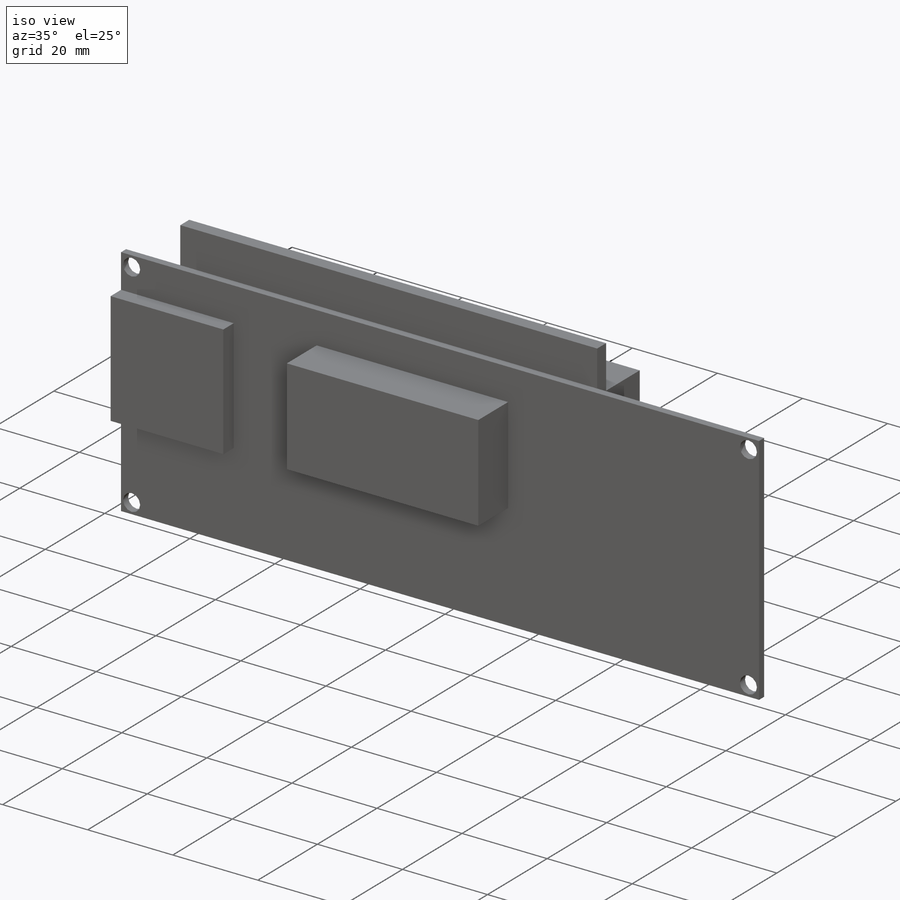
[diagram: iso view]
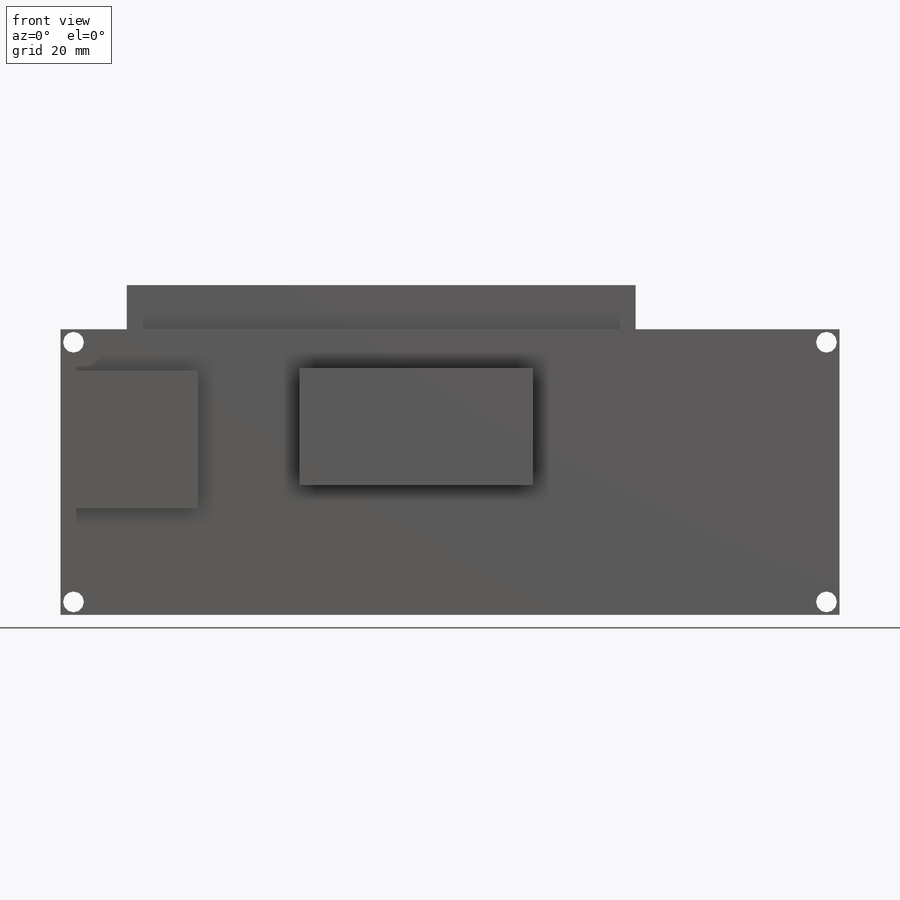
[diagram: front view]
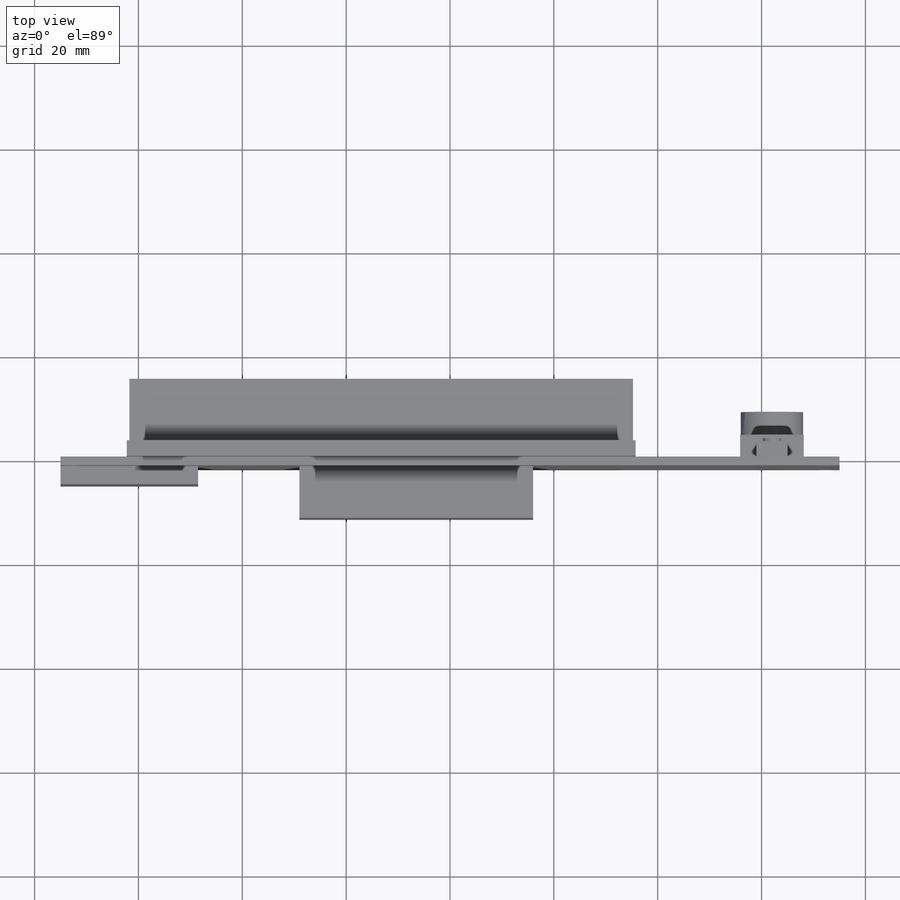
[diagram: top view]
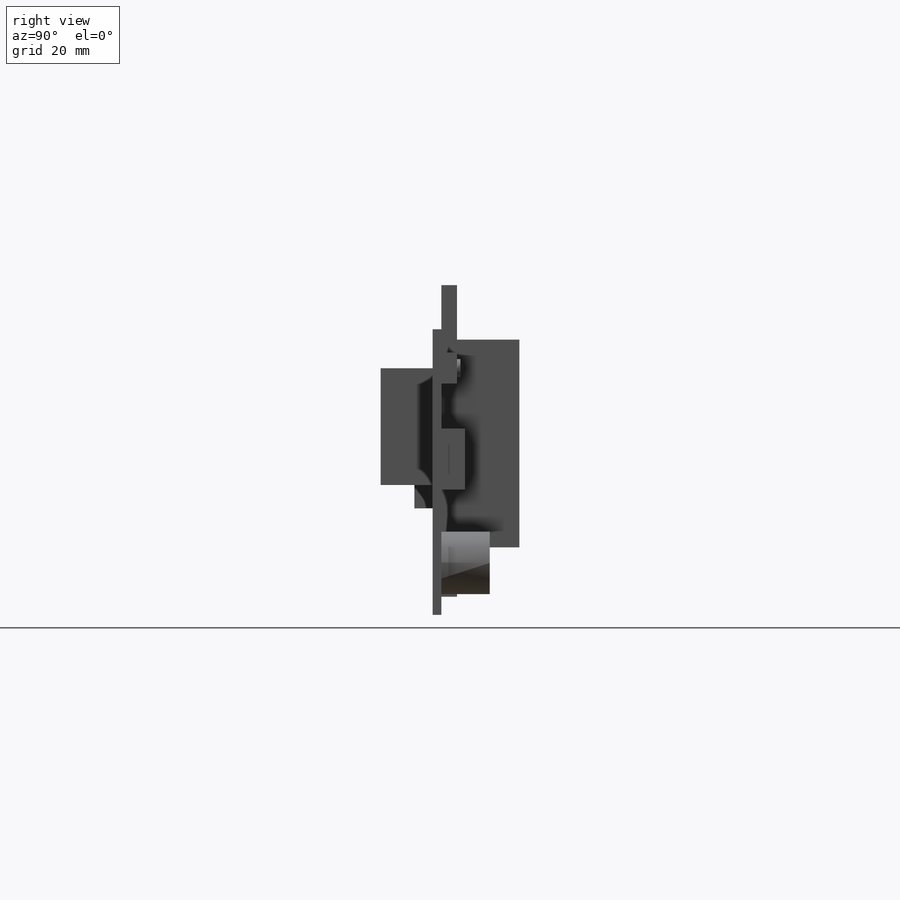
[diagram: right view]
SOLIDWORKS PART (.sldprt)
format: sldprt  version: not decoded by parser v0  size: 256,000 bytes
history: native  units: mm
features: sketch x10, extrude x9, material x1, cut_extrude x1 (+11 scaffold rows collapsed)
feature tree (32):
  scaffold x11  (default folders/planes/origin — collapsed)
  material  "Material <not specified>"
  sketch  "Sketch2"
  extrude  "Boss-Extrude1"  [1 undecoded]
  sketch  "Sketch3"  dims[c1.D1=~55.738896mm c1.D2=~103.331818mm c2.D1=60.0mm]
  extrude  "Boss-Extrude2"  [1 undecoded]
  sketch  "Sketch4"  dims[D1=40.0mm D2=97.0mm]
  extrude  "Boss-Extrude3"  [1 undecoded]
  sketch  "Sketch5"  dims[c1.D1=~4.686326mm c1.D2=~5.338395mm c2.D1=6.0mm c2.D2=6.0mm]
  extrude  "Boss-Extrude4"  Depth=3mm
  sketch  "Sketch6"  dims[D1=3.5mm]
  extrude  "Boss-Extrude5"  Depth=0.65mm
  sketch  "Sketch7"  dims[c1.D1=~8.048283mm c1.D2=~10.137948mm c2.D1=11.75mm c2.D2=12.25mm]
  extrude  "Boss-Extrude6"  Depth=4.5mm
  sketch  "Sketch8"  dims[D1=~14.295916mm]
  extrude  "Boss-Extrude7"  Depth=9.3mm
  sketch  "Sketch9"  dims[c1.D1=~13.596135mm c1.D2=~51.369828mm c2.D1=45.0mm c2.D2=22.5mm c2.D3=25.0mm c2.D4=46.0mm]
  extrude  "Boss-Extrude8"  [1 undecoded]
  sketch  "Sketch10"  dims[c1.D1=~21.083964mm c1.D2=~26.506883mm c2.D1=26.5mm c2.D2=26.5mm c2.D3=8.0mm]
  extrude  "Boss-Extrude9"  Depth=3.5mm
  sketch  "Sketch11"  dims[c1.D1=~20.983954mm c1.D2=~64.597127mm c2.D1=26.0mm c2.D2=76.0mm]
  cut_extrude  "Cut-Extrude1"  Depth=0.5mm
decode coverage: 15 of 20 modeling features carry decoded parameters
note: ~ marks probable driven/reference dimensions
note: 4 parameter values undecoded
summary: no parameter record found for 4 features
note: suppression state not decoded; provenance and decode notes live in map.json
